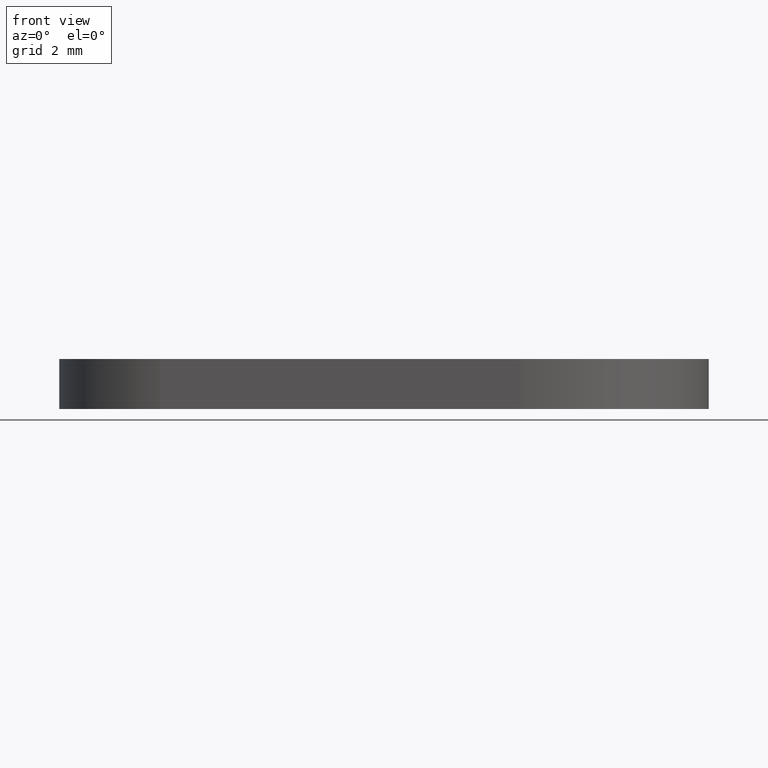
[diagram: clean part render]
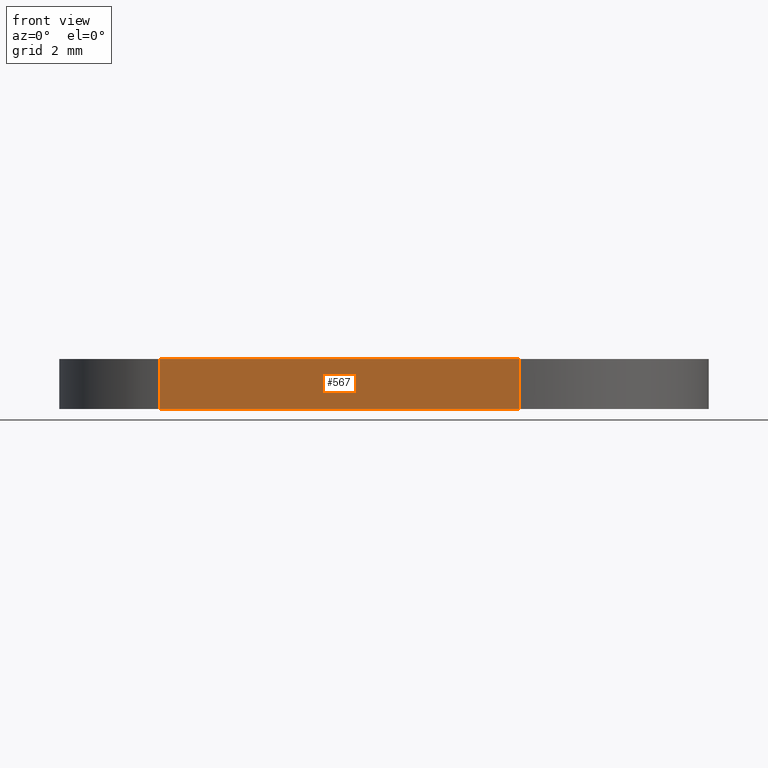
[diagram: same view with one face highlighted and labeled with its STEP entity id]
A machine part, front view. The second image highlights one B-rep face of the part: STEP entity #567.
In plain terms, the highlighted face is a freeform B-spline surface patch.
Its self-contained STEP definition (entity closure, byte-faithful):
#413=CARTESIAN_POINT('',(10.318182000000000,-4.953294000000000,0.0));
#414=VERTEX_POINT('',#413);
#434=CARTESIAN_POINT('',(-0.477272620487599,-3.467305992515355,0.0));
#435=VERTEX_POINT('',#434);
#436=CARTESIAN_POINT('',(-0.477272620487599,-3.467305992515355,0.0));
#437=CARTESIAN_POINT('',(10.318182000000000,-4.953294000000000,0.0));
#438=QUASI_UNIFORM_CURVE('',1,(#436,#437),.UNSPECIFIED.,.F.,.U.);
#439=EDGE_CURVE('',#435,#414,#438,.T.);
#483=CARTESIAN_POINT('',(10.318182000000000,-4.953294000000000,1.500000000000055));
#484=VERTEX_POINT('',#483);
#511=CARTESIAN_POINT('',(-0.477272620487599,-3.467305992515355,1.500000000000055));
#512=VERTEX_POINT('',#511);
#528=CARTESIAN_POINT('',(-0.477272620487599,-3.467305992515355,1.500000000000055));
#529=CARTESIAN_POINT('',(10.318182000000000,-4.953294000000000,1.500000000000055));
#530=QUASI_UNIFORM_CURVE('',1,(#528,#529),.UNSPECIFIED.,.F.,.U.);
#531=EDGE_CURVE('',#512,#484,#530,.T.);
#548=CARTESIAN_POINT('',(10.857414937772671,-5.027519095165975,-0.074924997092712));
#549=CARTESIAN_POINT('',(-1.016505855885075,-3.393080916105811,-0.074924997092712));
#550=CARTESIAN_POINT('',(10.857414937772671,-5.027519095165975,1.574925037325902));
#551=CARTESIAN_POINT('',(-1.016505855885075,-3.393080916105811,1.574925037325902));
#552=B_SPLINE_SURFACE_WITH_KNOTS('',1,1,((#548,#550),(#549,#551)),.UNSPECIFIED.,.F.,.F.,.U.,(2,2),(2,2),(0.0,11.985882661499209),(0.041708334948495,0.958291687403247),.UNSPECIFIED.);
#553=ORIENTED_EDGE('',*,*,#439,.T.);
#554=CARTESIAN_POINT('',(10.318182000000000,-4.953294000000000,1.500000000000055));
#555=CARTESIAN_POINT('',(10.318182000000000,-4.953294000000000,0.0));
#556=QUASI_UNIFORM_CURVE('',1,(#554,#555),.UNSPECIFIED.,.F.,.U.);
#557=EDGE_CURVE('',#484,#414,#556,.T.);
#558=ORIENTED_EDGE('',*,*,#557,.F.);
#559=ORIENTED_EDGE('',*,*,#531,.F.);
#560=CARTESIAN_POINT('',(-0.477272620487599,-3.467305992515355,1.500000000000055));
#561=CARTESIAN_POINT('',(-0.477272620487599,-3.467305992515355,0.0));
#562=QUASI_UNIFORM_CURVE('',1,(#560,#561),.UNSPECIFIED.,.F.,.U.);
#563=EDGE_CURVE('',#512,#435,#562,.T.);
#564=ORIENTED_EDGE('',*,*,#563,.T.);
#565=EDGE_LOOP('',(#553,#558,#559,#564));
#566=FACE_OUTER_BOUND('',#565,.T.);
#567=ADVANCED_FACE('',(#566),#552,.F.);